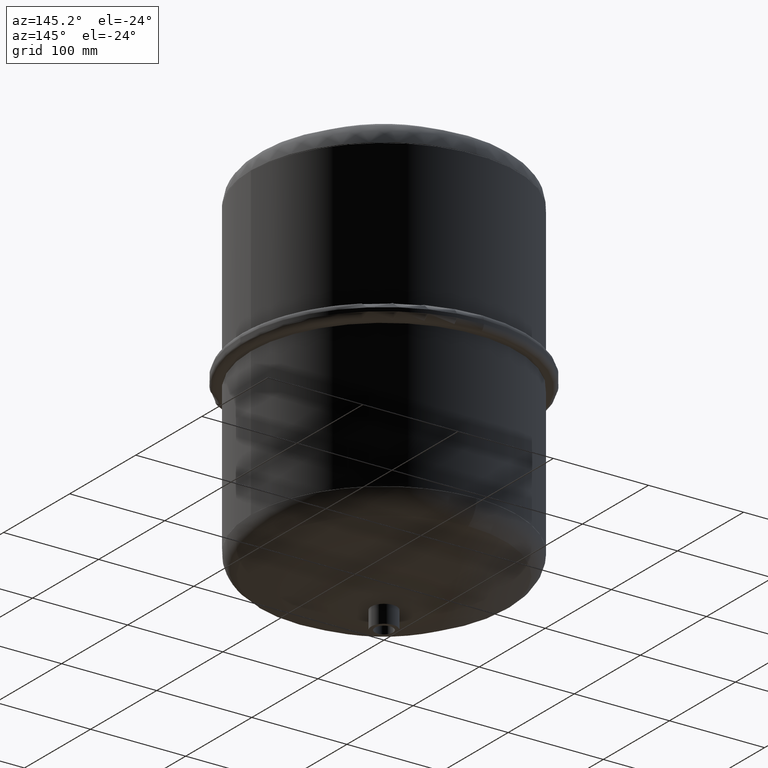
[diagram: clean part render]
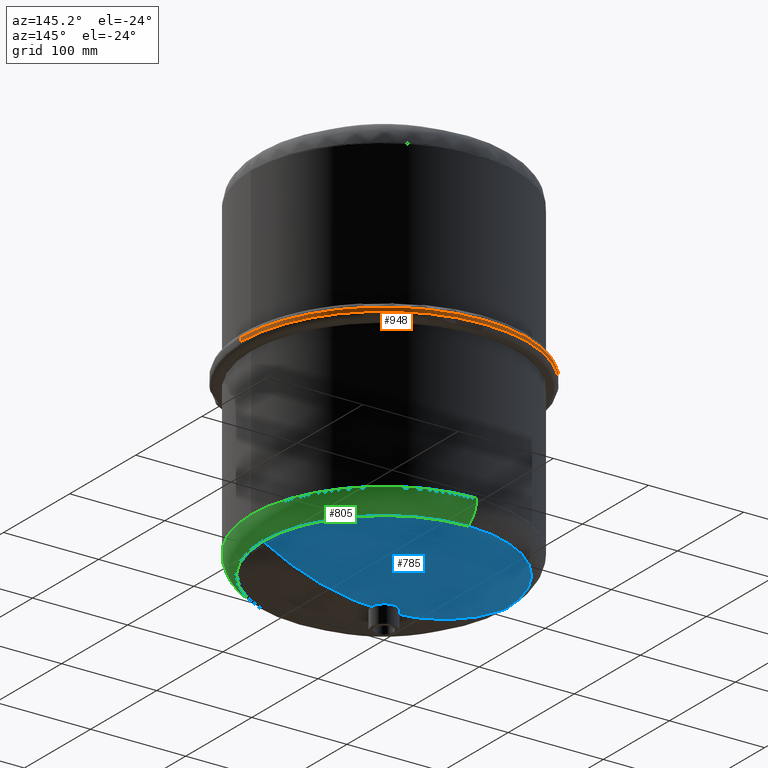
[diagram: same view with three faces highlighted in distinct colors, each labeled with its STEP entity id]
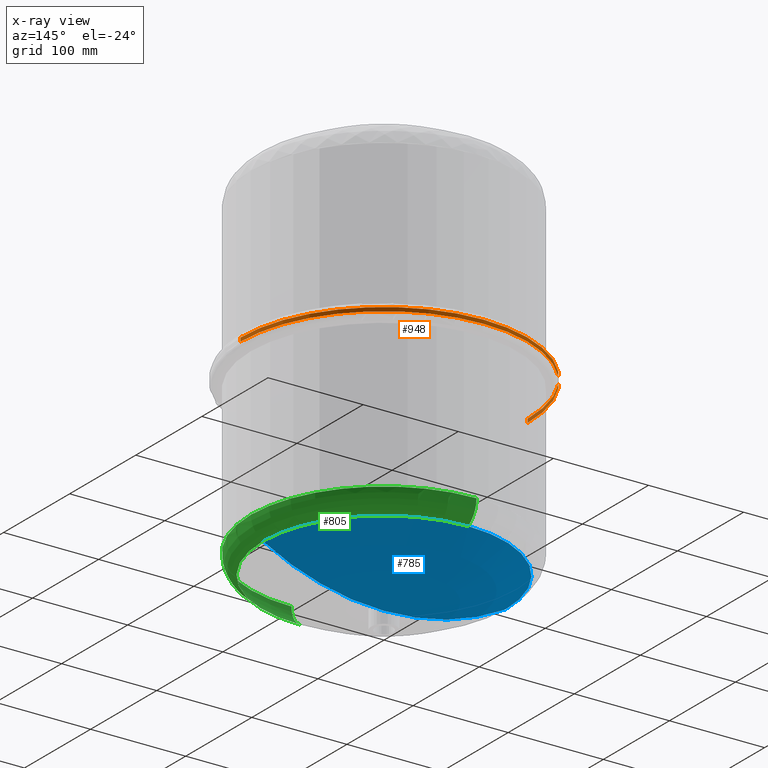
[diagram: x-ray of the same camera — body ghosted, the three highlighted faces saturated]
A machine part, auxiliary view with three faces highlighted in distinct colors.
The next image is the same camera in x-ray (body ghosted, the three faces saturated) — at least one of them is partly hidden behind the body in this view.
Their STEP definitions:

[orange] entity #948 — the highlighted cylindrical surface (partial cylindrical patch) has radius 151 mm, axis along (-0, 0, 1).
#871=CARTESIAN_POINT('',(-1.849156E-014,151.0,238.0));
#872=VERTEX_POINT('',#871);
#880=CARTESIAN_POINT('',(-151.0,4.440892E-016,238.0));
#881=VERTEX_POINT('',#880);
#882=CARTESIAN_POINT('',(-1.540744E-031,4.440892E-016,238.0));
#883=DIRECTION('',(0.0,0.0,1.0));
#884=DIRECTION('',(-1.0,0.0,0.0));
#885=AXIS2_PLACEMENT_3D('',#882,#883,#884);
#886=CIRCLE('',#885,151.0);
#887=EDGE_CURVE('',#872,#881,#886,.T.);
#899=CARTESIAN_POINT('',(-1.232595E-031,4.440892E-016,236.0));
#900=DIRECTION('',(-1.540744E-032,6.123032E-017,1.0));
#901=DIRECTION('',(-1.0,0.0,0.0));
#902=AXIS2_PLACEMENT_3D('',#899,#900,#901);
#903=CYLINDRICAL_SURFACE('',#902,151.0);
#904=CARTESIAN_POINT('',(-151.0,4.440892E-016,234.0));
#905=VERTEX_POINT('',#904);
#906=CARTESIAN_POINT('',(-151.0,5.665498E-016,238.0));
#907=DIRECTION('',(0.0,0.0,-1.0));
#908=VECTOR('',#907,4.0);
#909=LINE('',#906,#908);
#910=EDGE_CURVE('',#881,#905,#909,.T.);
#911=ORIENTED_EDGE('',*,*,#910,.F.);
#912=ORIENTED_EDGE('',*,*,#887,.F.);
#913=CARTESIAN_POINT('',(151.0,1.905811E-014,238.0));
#914=VERTEX_POINT('',#913);
#915=CARTESIAN_POINT('',(-1.540744E-031,4.440892E-016,238.0));
#916=DIRECTION('',(0.0,0.0,1.0));
#917=DIRECTION('',(-1.0,0.0,0.0));
#918=AXIS2_PLACEMENT_3D('',#915,#916,#917);
#919=CIRCLE('',#918,151.0);
#920=EDGE_CURVE('',#914,#872,#919,.T.);
#921=ORIENTED_EDGE('',*,*,#920,.F.);
#922=CARTESIAN_POINT('',(151.0,1.881318E-014,234.0));
#923=VERTEX_POINT('',#922);
#924=CARTESIAN_POINT('',(151.0,1.905811E-014,238.0));
#925=DIRECTION('',(0.0,0.0,-1.0));
#926=VECTOR('',#925,4.0);
#927=LINE('',#924,#926);
#928=EDGE_CURVE('',#914,#923,#927,.T.);
#929=ORIENTED_EDGE('',*,*,#928,.T.);
#930=CARTESIAN_POINT('',(-1.849156E-014,151.0,234.0));
#931=VERTEX_POINT('',#930);
#932=CARTESIAN_POINT('',(-9.244464E-032,4.440892E-016,234.0));
#933=DIRECTION('',(0.0,0.0,1.0));
#934=DIRECTION('',(-1.0,0.0,0.0));
#935=AXIS2_PLACEMENT_3D('',#932,#933,#934);
#936=CIRCLE('',#935,151.0);
#937=EDGE_CURVE('',#923,#931,#936,.T.);
#938=ORIENTED_EDGE('',*,*,#937,.T.);
#939=CARTESIAN_POINT('',(-9.244464E-032,4.440892E-016,234.0));
#940=DIRECTION('',(0.0,0.0,1.0));
#941=DIRECTION('',(-1.0,0.0,0.0));
#942=AXIS2_PLACEMENT_3D('',#939,#940,#941);
#943=CIRCLE('',#942,151.0);
#944=EDGE_CURVE('',#931,#905,#943,.T.);
#945=ORIENTED_EDGE('',*,*,#944,.T.);
#946=EDGE_LOOP('',(#911,#912,#921,#929,#938,#945));
#947=FACE_OUTER_BOUND('',#946,.T.);
#948=ADVANCED_FACE('',(#947),#903,.T.);

[blue] entity #785 — the highlighted spherical surface has radius 258 mm.
#706=CARTESIAN_POINT('',(-1.223841E-014,127.33905579399143,51.614695513510206));
#707=VERTEX_POINT('',#706);
#715=CARTESIAN_POINT('',(-127.33905579399145,4.112114E-015,51.614695513510199));
#716=VERTEX_POINT('',#715);
#717=CARTESIAN_POINT('',(-4.148636E-015,4.112114E-015,51.614695513510178));
#718=DIRECTION('',(0.0,0.0,1.0));
#719=DIRECTION('',(-1.0,0.0,0.0));
#720=AXIS2_PLACEMENT_3D('',#717,#718,#719);
#721=CIRCLE('',#720,127.33905579399143);
#722=EDGE_CURVE('',#707,#716,#721,.T.);
#739=CARTESIAN_POINT('',(127.33905579399143,-3.710680E-014,51.614695513510163));
#740=VERTEX_POINT('',#739);
#741=CARTESIAN_POINT('',(-6.527315E-014,-3.710680E-014,18.0));
#742=VERTEX_POINT('',#741);
#743=CARTESIAN_POINT('',(-4.947573E-014,-3.710680E-014,276.00000000000006));
#744=DIRECTION('',(0.0,1.0,0.0));
#745=DIRECTION('',(1.0,0.0,0.0));
#746=AXIS2_PLACEMENT_3D('',#743,#744,#745);
#747=CIRCLE('',#746,258.00000000000006);
#748=EDGE_CURVE('',#740,#742,#747,.T.);
#758=CARTESIAN_POINT('',(-4.947573E-014,-3.710680E-014,276.00000000000006));
#759=DIRECTION('',(0.0,-1.0,0.0));
#760=DIRECTION('',(-1.0,0.0,0.0));
#761=AXIS2_PLACEMENT_3D('',#758,#759,#760);
#762=CIRCLE('',#761,258.00000000000006);
#763=EDGE_CURVE('',#716,#742,#762,.T.);
#768=CARTESIAN_POINT('',(-4.947573E-014,-3.710680E-014,276.00000000000006));
#769=DIRECTION('',(0.0,0.0,1.0));
#770=DIRECTION('',(1.0,0.0,0.0));
#771=AXIS2_PLACEMENT_3D('',#768,#769,#770);
#772=SPHERICAL_SURFACE('',#771,258.00000000000006);
#773=ORIENTED_EDGE('',*,*,#748,.T.);
#774=ORIENTED_EDGE('',*,*,#763,.F.);
#775=ORIENTED_EDGE('',*,*,#722,.F.);
#776=CARTESIAN_POINT('',(-4.148636E-015,4.112114E-015,51.614695513510178));
#777=DIRECTION('',(0.0,0.0,1.0));
#778=DIRECTION('',(-1.0,0.0,0.0));
#779=AXIS2_PLACEMENT_3D('',#776,#777,#778);
#780=CIRCLE('',#779,127.33905579399143);
#781=EDGE_CURVE('',#740,#707,#780,.T.);
#782=ORIENTED_EDGE('',*,*,#781,.F.);
#783=EDGE_LOOP('',(#773,#774,#775,#782));
#784=FACE_OUTER_BOUND('',#783,.T.);
#785=ADVANCED_FACE('',(#784),#772,.T.);

[green] entity #805 — the highlighted toroidal blend (fillet) surface has major radius 115 mm and minor (blend) radius 25 mm.
#655=CARTESIAN_POINT('',(140.0,1.726252E-014,73.35745757615453));
#656=VERTEX_POINT('',#655);
#663=CARTESIAN_POINT('',(-9.759320E-015,140.0,73.357457576154587));
#664=VERTEX_POINT('',#663);
#665=CARTESIAN_POINT('',(-1.190815E-016,1.180331E-016,73.357457576154559));
#666=DIRECTION('',(0.0,0.0,1.0));
#667=DIRECTION('',(-1.0,0.0,0.0));
#668=AXIS2_PLACEMENT_3D('',#665,#666,#667);
#669=CIRCLE('',#668,140.0);
#670=EDGE_CURVE('',#656,#664,#669,.T.);
#687=CARTESIAN_POINT('',(7.385169E-015,-140.0,73.35745757615453));
#688=VERTEX_POINT('',#687);
#689=CARTESIAN_POINT('',(3.355614E-015,-127.33905579399143,51.614695513510156));
#690=VERTEX_POINT('',#689);
#691=CARTESIAN_POINT('',(7.385169E-015,-115.00000000000001,73.357457576154559));
#692=DIRECTION('',(1.0,0.0,0.0));
#693=DIRECTION('',(0.0,-1.0,0.0));
#694=AXIS2_PLACEMENT_3D('',#691,#692,#693);
#695=CIRCLE('',#694,25.0);
#696=EDGE_CURVE('',#688,#690,#695,.T.);
#706=CARTESIAN_POINT('',(-1.223841E-014,127.33905579399143,51.614695513510206));
#707=VERTEX_POINT('',#706);
#708=CARTESIAN_POINT('',(-6.697804E-015,115.00000000000001,73.357457576154616));
#709=DIRECTION('',(-1.0,0.0,0.0));
#710=DIRECTION('',(0.0,1.0,0.0));
#711=AXIS2_PLACEMENT_3D('',#708,#709,#710);
#712=CIRCLE('',#711,25.0);
#713=EDGE_CURVE('',#664,#707,#712,.T.);
#739=CARTESIAN_POINT('',(127.33905579399143,-3.710680E-014,51.614695513510163));
#740=VERTEX_POINT('',#739);
#750=CARTESIAN_POINT('',(-4.148636E-015,4.112114E-015,51.614695513510178));
#751=DIRECTION('',(0.0,0.0,1.0));
#752=DIRECTION('',(-1.0,0.0,0.0));
#753=AXIS2_PLACEMENT_3D('',#750,#751,#752);
#754=CIRCLE('',#753,127.33905579399143);
#755=EDGE_CURVE('',#690,#740,#754,.T.);
#776=CARTESIAN_POINT('',(-4.148636E-015,4.112114E-015,51.614695513510178));
#777=DIRECTION('',(0.0,0.0,1.0));
#778=DIRECTION('',(-1.0,0.0,0.0));
#779=AXIS2_PLACEMENT_3D('',#776,#777,#778);
#780=CIRCLE('',#779,127.33905579399143);
#781=EDGE_CURVE('',#740,#707,#780,.T.);
#786=CARTESIAN_POINT('',(7.385169E-015,1.180331E-016,73.357457576154587));
#787=DIRECTION('',(1.853286E-016,-1.836970E-016,1.0));
#788=DIRECTION('',(0.0,-1.0,0.0));
#789=AXIS2_PLACEMENT_3D('',#786,#787,#788);
#790=TOROIDAL_SURFACE('',#789,115.00000000000001,25.0);
#791=ORIENTED_EDGE('',*,*,#696,.T.);
#792=ORIENTED_EDGE('',*,*,#755,.T.);
#793=ORIENTED_EDGE('',*,*,#781,.T.);
#794=ORIENTED_EDGE('',*,*,#713,.F.);
#795=ORIENTED_EDGE('',*,*,#670,.F.);
#796=CARTESIAN_POINT('',(-1.190815E-016,1.180331E-016,73.357457576154559));
#797=DIRECTION('',(0.0,0.0,1.0));
#798=DIRECTION('',(-1.0,0.0,0.0));
#799=AXIS2_PLACEMENT_3D('',#796,#797,#798);
#800=CIRCLE('',#799,140.0);
#801=EDGE_CURVE('',#688,#656,#800,.T.);
#802=ORIENTED_EDGE('',*,*,#801,.F.);
#803=EDGE_LOOP('',(#791,#792,#793,#794,#795,#802));
#804=FACE_OUTER_BOUND('',#803,.T.);
#805=ADVANCED_FACE('',(#804),#790,.T.);